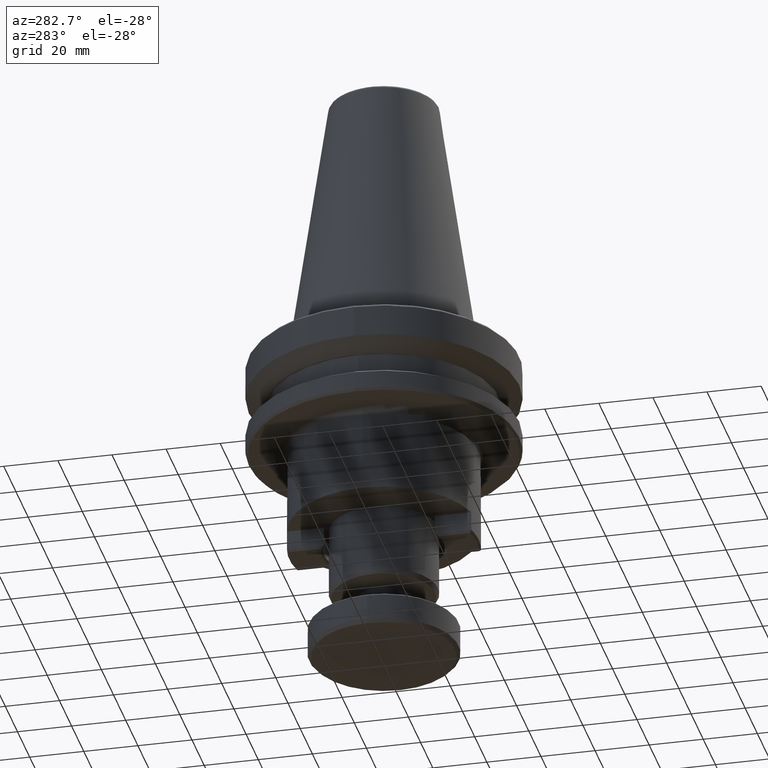
[diagram: clean part render]
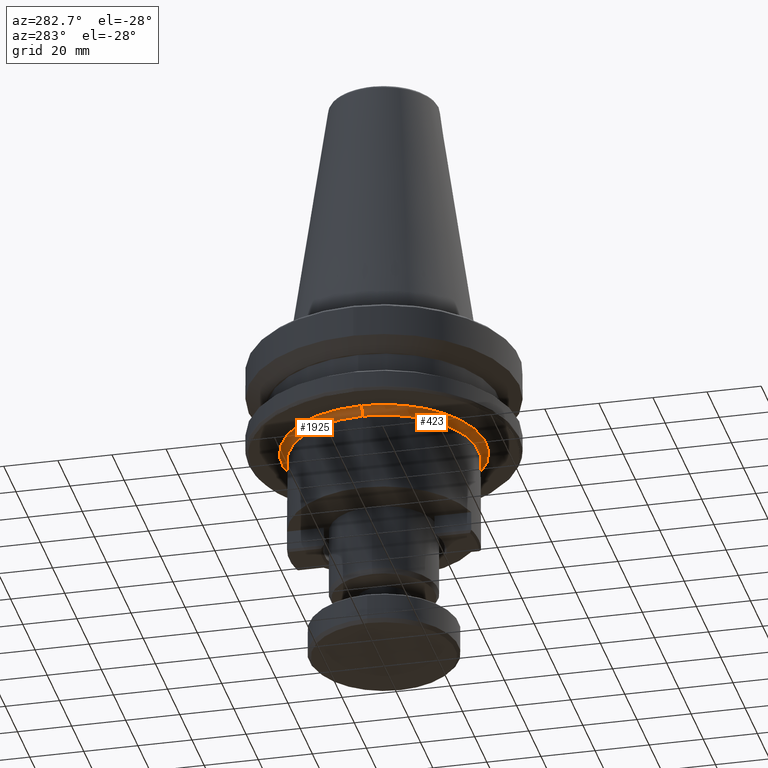
[diagram: same view with one multi-face feature highlighted, each face labeled with its STEP entity id]
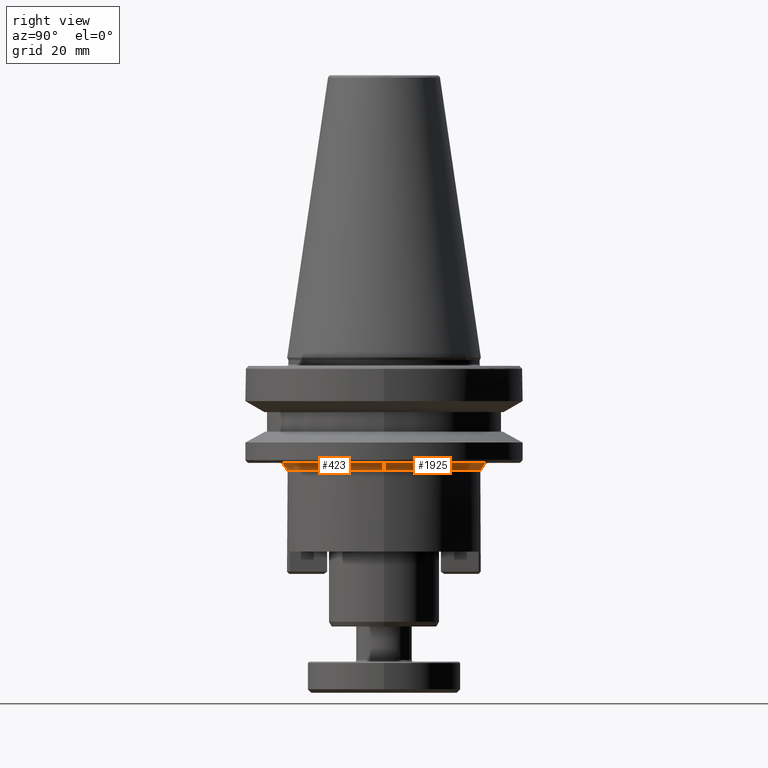
[diagram: same view with one multi-face feature highlighted, each face labeled with its STEP entity id]
A machine part, auxiliary view. The highlighted faces form ONE feature: a constant-radius fillet chain: 2 tangent blend faces with common blend radius 2.8 mm. The faces share edges in the B-rep.
A second angle (right view) of the same feature is appended — it is thin or edge-on in the first view.
Their STEP definitions:
[1] entity #423 (Torus):
#66 = VERTEX_POINT ( 'NONE', #588 ) ;
#208 = DIRECTION ( 'NONE',  ( -1.000000000000000000, -1.224646799147353900E-016, 0.0000000000000000000 ) ) ;
#210 = DIRECTION ( 'NONE',  ( -1.224646799147353200E-016, 1.000000000000000000, 0.0000000000000000000 ) ) ;
#213 = CARTESIAN_POINT ( 'NONE',  ( 37.79999999190400900, 4.629164899785522500E-015, -40.79999999183063200 ) ) ;
#243 = ORIENTED_EDGE ( 'NONE', *, *, #1105, .F. ) ;
#279 = ORIENTED_EDGE ( 'NONE', *, *, #789, .F. ) ;
#389 = EDGE_CURVE ( 'NONE', #1343, #66, #1089, .T. ) ;
#423 = ADVANCED_FACE ( 'NONE', ( #1962 ), #2146, .F. ) ;
#427 = AXIS2_PLACEMENT_3D ( 'NONE', #2846, #1915, #3002 ) ;
#571 = AXIS2_PLACEMENT_3D ( 'NONE', #213, #210, #208 ) ;
#588 = CARTESIAN_POINT ( 'NONE',  ( -37.79999999190400900, 0.0000000000000000000, -37.99999999992662200 ) ) ;
#706 = CARTESIAN_POINT ( 'NONE',  ( 37.79999999190400900, 0.0000000000000000000, -37.99999999992662200 ) ) ;
#734 = EDGE_CURVE ( 'NONE', #3249, #1343, #2515, .T. ) ;
#789 = EDGE_CURVE ( 'NONE', #2581, #66, #2501, .T. ) ;
#1002 = VERTEX_POINT ( 'NONE', #2387 ) ;
#1035 = ORIENTED_EDGE ( 'NONE', *, *, #389, .T. ) ;
#1089 = B_SPLINE_CURVE_WITH_KNOTS ( 'NONE', 3,
 ( #3314, #2165, #2634, #2556, #2997, #2715, #2795, #3185, #2390, #2974 ),
 .UNSPECIFIED., .F., .F.,
 ( 4, 2, 2, 2, 4 ),
 ( 0.0000000000000000000, 0.2500000000000000000, 0.5000000000000000000, 0.7500000000000000000, 1.000000000000000000 ),
 .UNSPECIFIED. ) ;
#1105 = EDGE_CURVE ( 'NONE', #1002, #2581, #2868, .T. ) ;
#1159 = CARTESIAN_POINT ( 'NONE',  ( -30.30357652988282500, -22.59498282551854600, -37.99999999992662200 ) ) ;
#1343 = VERTEX_POINT ( 'NONE', #1159 ) ;
#1413 = DIRECTION ( 'NONE',  ( -1.000000000000000000, 0.0000000000000000000, 0.0000000000000000000 ) ) ;
#1417 = DIRECTION ( 'NONE',  ( -0.0000000000000000000, -0.0000000000000000000, -1.000000000000000000 ) ) ;
#1419 = CARTESIAN_POINT ( 'NONE',  ( 0.0000000000000000000, 0.0000000000000000000, -40.79999999183063200 ) ) ;
#1464 = DIRECTION ( 'NONE',  ( 0.0000000000000000000, 0.0000000000000000000, -1.000000000000000000 ) ) ;
#1467 = DIRECTION ( 'NONE',  ( 0.0000000000000000000, -1.000000000000000000, 0.0000000000000000000 ) ) ;
#1472 = CARTESIAN_POINT ( 'NONE',  ( -37.79999999190400900, 0.0000000000000000000, -40.79999999183063200 ) ) ;
#1495 = CARTESIAN_POINT ( 'NONE',  ( 37.79999999190400900, 0.0000000000000000000, -37.99999999992662200 ) ) ;
#1530 = CARTESIAN_POINT ( 'NONE',  ( 37.79999999190401600, -3.938917507089715100, -37.99999999992662900 ) ) ;
#1542 = EDGE_CURVE ( 'NONE', #1002, #3249, #3229, .T. ) ;
#1573 = ORIENTED_EDGE ( 'NONE', *, *, #734, .T. ) ;
#1785 = CARTESIAN_POINT ( 'NONE',  ( -35.00000000000000000, 0.0000000000000000000, -40.79999999183063200 ) ) ;
#1915 = DIRECTION ( 'NONE',  ( -0.0000000000000000000, -0.0000000000000000000, -1.000000000000000000 ) ) ;
#1934 = ORIENTED_EDGE ( 'NONE', *, *, #1542, .T. ) ;
#1937 = CARTESIAN_POINT ( 'NONE',  ( -27.94908516895985800, -25.75274177119458200, -37.99999999992663600 ) ) ;
#1962 = FACE_OUTER_BOUND ( 'NONE', #2834, .T. ) ;
#1967 = CARTESIAN_POINT ( 'NONE',  ( -3.646464090788316300, -37.82933213989103600, -37.99999999992662900 ) ) ;
#2085 = CARTESIAN_POINT ( 'NONE',  ( 28.34406029596784600, -25.31737183149428500, -37.99999999992663600 ) ) ;
#2146 = TOROIDAL_SURFACE ( 'NONE', #427, 37.79999999190400900, 2.799999991904011100 ) ;
#2154 = CARTESIAN_POINT ( 'NONE',  ( 19.18407337293484400, -32.80741378617725000, -37.99999999992662200 ) ) ;
#2165 = CARTESIAN_POINT ( 'NONE',  ( -31.50994647908992600, -20.97704293322260900, -37.99999999992662200 ) ) ;
#2251 = CARTESIAN_POINT ( 'NONE',  ( -7.589439647831699000, -37.23916589220979700, -37.99999999992662200 ) ) ;
#2329 = CARTESIAN_POINT ( 'NONE',  ( 8.164511102264683000, -37.11732518617954200, -37.99999999992662900 ) ) ;
#2378 = CARTESIAN_POINT ( 'NONE',  ( -15.10397552265484200, -34.87441747078573000, -37.99999999992662900 ) ) ;
#2387 = CARTESIAN_POINT ( 'NONE',  ( 35.00000000000000000, 4.457714348400629900E-015, -40.79999999183063200 ) ) ;
#2390 = CARTESIAN_POINT ( 'NONE',  ( -37.79999999190401600, -2.018181842508889500, -37.99999999992662200 ) ) ;
#2501 = CIRCLE ( 'NONE', #2551, 2.799999991904014600 ) ;
#2515 = B_SPLINE_CURVE_WITH_KNOTS ( 'NONE', 3,
 ( #1495, #1530, #2995, #2720, #2697, #2085, #2987, #2154, #3292, #2329, #2535, #1967, #2251, #2378, #2970, #3169, #1937, #2518 ),
 .UNSPECIFIED., .F., .F.,
 ( 4, 2, 2, 2, 2, 2, 2, 2, 4 ),
 ( 0.0000000000000000000, 0.1249999999999999400, 0.2499999999999998900, 0.3749999999999998900, 0.4999999999999998900, 0.6249999999999998900, 0.7500000000000000000, 0.8750000000000000000, 1.000000000000000000 ),
 .UNSPECIFIED. ) ;
#2518 = CARTESIAN_POINT ( 'NONE',  ( -30.30357652988282500, -22.59498282551854600, -37.99999999992662200 ) ) ;
#2535 = CARTESIAN_POINT ( 'NONE',  ( 4.231135329920407500, -37.76840696052060100, -37.99999999992662900 ) ) ;
#2551 = AXIS2_PLACEMENT_3D ( 'NONE', #1472, #1467, #1464 ) ;
#2556 = CARTESIAN_POINT ( 'NONE',  ( -34.45221994650404400, -15.68303535974731300, -37.99999999992661500 ) ) ;
#2581 = VERTEX_POINT ( 'NONE', #1785 ) ;
#2634 = CARTESIAN_POINT ( 'NONE',  ( -32.58645162046419600, -19.26230069655549900, -37.99999999992662200 ) ) ;
#2697 = CARTESIAN_POINT ( 'NONE',  ( 32.95479741337081900, -18.92977543340884200, -37.99999999992662900 ) ) ;
#2715 = CARTESIAN_POINT ( 'NONE',  ( -36.51249458164444700, -9.987532065668707700, -37.99999999992662900 ) ) ;
#2720 = CARTESIAN_POINT ( 'NONE',  ( 34.75656420255846500, -15.37323373103496700, -37.99999999992662200 ) ) ;
#2795 = CARTESIAN_POINT ( 'NONE',  ( -36.99426980630255500, -8.021038513550893300, -37.99999999992662200 ) ) ;
#2834 = EDGE_LOOP ( 'NONE', ( #243, #1934, #1573, #1035, #279 ) ) ;
#2846 = CARTESIAN_POINT ( 'NONE',  ( 0.0000000000000000000, 0.0000000000000000000, -40.79999999183063200 ) ) ;
#2868 = CIRCLE ( 'NONE', #3071, 35.00000000000000000 ) ;
#2970 = CARTESIAN_POINT ( 'NONE',  ( -18.67434527126422600, -33.10020995711678900, -37.99999999992662900 ) ) ;
#2974 = CARTESIAN_POINT ( 'NONE',  ( -37.79999999190400900, 0.0000000000000000000, -37.99999999992662200 ) ) ;
#2987 = CARTESIAN_POINT ( 'NONE',  ( 25.53582047214509400, -28.14741450524323000, -37.99999999992662200 ) ) ;
#2995 = CARTESIAN_POINT ( 'NONE',  ( 37.17935742003987100, -7.877210949855753900, -37.99999999992662200 ) ) ;
#2997 = CARTESIAN_POINT ( 'NONE',  ( -35.24146268862988800, -13.81855147630473400, -37.99999999992662200 ) ) ;
#3002 = DIRECTION ( 'NONE',  ( -1.000000000000000000, 0.0000000000000000000, 0.0000000000000000000 ) ) ;
#3071 = AXIS2_PLACEMENT_3D ( 'NONE', #1419, #1417, #1413 ) ;
#3169 = CARTESIAN_POINT ( 'NONE',  ( -25.09740891503325600, -28.53901077940877700, -37.99999999992662900 ) ) ;
#3185 = CARTESIAN_POINT ( 'NONE',  ( -37.63802603813289900, -4.036341572538969300, -37.99999999992662900 ) ) ;
#3229 = CIRCLE ( 'NONE', #571, 2.799999991904007900 ) ;
#3249 = VERTEX_POINT ( 'NONE', #706 ) ;
#3292 = CARTESIAN_POINT ( 'NONE',  ( 15.64157243970875500, -34.63663208409479900, -37.99999999992662200 ) ) ;
#3314 = CARTESIAN_POINT ( 'NONE',  ( -30.30357652988282500, -22.59498282551854600, -37.99999999992662200 ) ) ;
[2] entity #1925 (Torus):
#66 = VERTEX_POINT ( 'NONE', #588 ) ;
#199 = ORIENTED_EDGE ( 'NONE', *, *, #1529, .T. ) ;
#208 = DIRECTION ( 'NONE',  ( -1.000000000000000000, -1.224646799147353900E-016, 0.0000000000000000000 ) ) ;
#210 = DIRECTION ( 'NONE',  ( -1.224646799147353200E-016, 1.000000000000000000, 0.0000000000000000000 ) ) ;
#213 = CARTESIAN_POINT ( 'NONE',  ( 37.79999999190400900, 4.629164899785522500E-015, -40.79999999183063200 ) ) ;
#250 = CARTESIAN_POINT ( 'NONE',  ( 30.30357602049704700, 22.59498235865908100, -37.99999999993885100 ) ) ;
#251 = CARTESIAN_POINT ( 'NONE',  ( 27.94908521476687500, 25.75274172192559900, -37.99999999992662900 ) ) ;
#256 = CARTESIAN_POINT ( 'NONE',  ( 25.09740896350712400, 28.53901073718184700, -37.99999999992662900 ) ) ;
#257 = CARTESIAN_POINT ( 'NONE',  ( 18.67434532236479300, 33.10020992863309900, -37.99999999992662200 ) ) ;
#258 = CARTESIAN_POINT ( 'NONE',  ( 15.10397557371786800, 34.87441744899894800, -37.99999999992662900 ) ) ;
#261 = CARTESIAN_POINT ( 'NONE',  ( 7.589439696621719000, 37.23916588257383600, -37.99999999992662200 ) ) ;
#262 = CARTESIAN_POINT ( 'NONE',  ( 3.646464137346735200, 37.82933213570591800, -37.99999999992662900 ) ) ;
#266 = CARTESIAN_POINT ( 'NONE',  ( -4.231135289247693400, 37.76840696538035000, -37.99999999992662200 ) ) ;
#267 = CARTESIAN_POINT ( 'NONE',  ( -8.164511065241510900, 37.11732519463191700, -37.99999999992662900 ) ) ;
#268 = CARTESIAN_POINT ( 'NONE',  ( -15.64157241049525200, 34.63663209761801900, -37.99999999992662200 ) ) ;
#270 = CARTESIAN_POINT ( 'NONE',  ( -19.18407334787674000, 32.80741380117905200, -37.99999999992662900 ) ) ;
#272 = CARTESIAN_POINT ( 'NONE',  ( -25.53582045500226300, 28.14741452120241400, -37.99999999992662200 ) ) ;
#282 = CARTESIAN_POINT ( 'NONE',  ( -28.34406028258063900, 25.31737184693433200, -37.99999999992662900 ) ) ;
#283 = CARTESIAN_POINT ( 'NONE',  ( -32.95479740633558700, 18.92977544626154100, -37.99999999992662200 ) ) ;
#286 = CARTESIAN_POINT ( 'NONE',  ( -34.75656419811640800, 15.37323374182284800, -37.99999999992661500 ) ) ;
#287 = CARTESIAN_POINT ( 'NONE',  ( -37.17935741911626500, 7.877210955669038000, -37.99999999992662200 ) ) ;
#293 = CARTESIAN_POINT ( 'NONE',  ( -37.79999999190400900, 3.938917509997514000, -37.99999999992662200 ) ) ;
#316 = CARTESIAN_POINT ( 'NONE',  ( -37.79999999190400900, 0.0000000000000000000, -37.99999999992662200 ) ) ;
#435 = ORIENTED_EDGE ( 'NONE', *, *, #1225, .T. ) ;
#571 = AXIS2_PLACEMENT_3D ( 'NONE', #213, #210, #208 ) ;
#588 = CARTESIAN_POINT ( 'NONE',  ( -37.79999999190400900, 0.0000000000000000000, -37.99999999992662200 ) ) ;
#706 = CARTESIAN_POINT ( 'NONE',  ( 37.79999999190400900, 0.0000000000000000000, -37.99999999992662200 ) ) ;
#789 = EDGE_CURVE ( 'NONE', #2581, #66, #2501, .T. ) ;
#861 = ORIENTED_EDGE ( 'NONE', *, *, #3060, .F. ) ;
#905 = VERTEX_POINT ( 'NONE', #1762 ) ;
#1002 = VERTEX_POINT ( 'NONE', #2387 ) ;
#1090 = CIRCLE ( 'NONE', #3000, 35.00000000000000000 ) ;
#1117 = AXIS2_PLACEMENT_3D ( 'NONE', #1846, #2923, #2961 ) ;
#1225 = EDGE_CURVE ( 'NONE', #905, #3249, #3374, .T. ) ;
#1327 = CARTESIAN_POINT ( 'NONE',  ( 37.79999999190400900, 0.0000000000000000000, -37.99999999992662200 ) ) ;
#1329 = CARTESIAN_POINT ( 'NONE',  ( 37.79999999190400200, 2.018181836693300200, -37.99999999992662200 ) ) ;
#1330 = CARTESIAN_POINT ( 'NONE',  ( 37.63802603906835700, 4.036341560908112100, -37.99999999992662900 ) ) ;
#1332 = CARTESIAN_POINT ( 'NONE',  ( 36.99426981093223100, 8.021038490734879300, -37.99999999992662200 ) ) ;
#1335 = CARTESIAN_POINT ( 'NONE',  ( 36.51249458903271300, 9.987532037483445500, -37.99999999992662900 ) ) ;
#1338 = CARTESIAN_POINT ( 'NONE',  ( 35.24146270321721600, 13.81855143825331600, -37.99999999992662200 ) ) ;
#1339 = CARTESIAN_POINT ( 'NONE',  ( 34.45221996553155500, 15.68303531719959500, -37.99999999992661500 ) ) ;
#1341 = CARTESIAN_POINT ( 'NONE',  ( 32.58645164982419800, 19.26230064627724700, -37.99999999992662200 ) ) ;
#1355 = CARTESIAN_POINT ( 'NONE',  ( 30.30357602049704700, 22.59498235865908100, -37.99999999993885100 ) ) ;
#1379 = CARTESIAN_POINT ( 'NONE',  ( 31.50994651434183800, 20.97704287971063800, -37.99999999992662200 ) ) ;
#1436 = DIRECTION ( 'NONE',  ( -0.0000000000000000000, -0.0000000000000000000, -1.000000000000000000 ) ) ;
#1464 = DIRECTION ( 'NONE',  ( 0.0000000000000000000, 0.0000000000000000000, -1.000000000000000000 ) ) ;
#1467 = DIRECTION ( 'NONE',  ( 0.0000000000000000000, -1.000000000000000000, 0.0000000000000000000 ) ) ;
#1472 = CARTESIAN_POINT ( 'NONE',  ( -37.79999999190400900, 0.0000000000000000000, -40.79999999183063200 ) ) ;
#1529 = EDGE_CURVE ( 'NONE', #66, #905, #2638, .T. ) ;
#1542 = EDGE_CURVE ( 'NONE', #1002, #3249, #3229, .T. ) ;
#1762 = CARTESIAN_POINT ( 'NONE',  ( 30.30357602049704700, 22.59498235865908100, -37.99999999993885100 ) ) ;
#1785 = CARTESIAN_POINT ( 'NONE',  ( -35.00000000000000000, 0.0000000000000000000, -40.79999999183063200 ) ) ;
#1846 = CARTESIAN_POINT ( 'NONE',  ( 0.0000000000000000000, 0.0000000000000000000, -40.79999999183063200 ) ) ;
#1925 = ADVANCED_FACE ( 'NONE', ( #2630 ), #2601, .F. ) ;
#2387 = CARTESIAN_POINT ( 'NONE',  ( 35.00000000000000000, 4.457714348400629900E-015, -40.79999999183063200 ) ) ;
#2501 = CIRCLE ( 'NONE', #2551, 2.799999991904014600 ) ;
#2551 = AXIS2_PLACEMENT_3D ( 'NONE', #1472, #1467, #1464 ) ;
#2581 = VERTEX_POINT ( 'NONE', #1785 ) ;
#2601 = TOROIDAL_SURFACE ( 'NONE', #1117, 37.79999999190400900, 2.799999991904011100 ) ;
#2630 = FACE_OUTER_BOUND ( 'NONE', #2940, .T. ) ;
#2638 = B_SPLINE_CURVE_WITH_KNOTS ( 'NONE', 3,
 ( #316, #293, #287, #286, #283, #282, #272, #270, #268, #267, #266, #262, #261, #258, #257, #256, #251, #250 ),
 .UNSPECIFIED., .F., .F.,
 ( 4, 2, 2, 2, 2, 2, 2, 2, 4 ),
 ( 0.0000000000000000000, 0.1250000000000000000, 0.2500000000000000000, 0.3750000000000000000, 0.5000000000000000000, 0.6250000000000000000, 0.7500000000000000000, 0.8750000000000000000, 1.000000000000000000 ),
 .UNSPECIFIED. ) ;
#2923 = DIRECTION ( 'NONE',  ( -0.0000000000000000000, -0.0000000000000000000, -1.000000000000000000 ) ) ;
#2940 = EDGE_LOOP ( 'NONE', ( #3258, #861, #3043, #199, #435 ) ) ;
#2961 = DIRECTION ( 'NONE',  ( -1.000000000000000000, 0.0000000000000000000, 0.0000000000000000000 ) ) ;
#2962 = CARTESIAN_POINT ( 'NONE',  ( 0.0000000000000000000, 0.0000000000000000000, -40.79999999183063200 ) ) ;
#3000 = AXIS2_PLACEMENT_3D ( 'NONE', #2962, #1436, #3208 ) ;
#3043 = ORIENTED_EDGE ( 'NONE', *, *, #789, .T. ) ;
#3060 = EDGE_CURVE ( 'NONE', #2581, #1002, #1090, .T. ) ;
#3208 = DIRECTION ( 'NONE',  ( -1.000000000000000000, 0.0000000000000000000, 0.0000000000000000000 ) ) ;
#3229 = CIRCLE ( 'NONE', #571, 2.799999991904007900 ) ;
#3249 = VERTEX_POINT ( 'NONE', #706 ) ;
#3258 = ORIENTED_EDGE ( 'NONE', *, *, #1542, .F. ) ;
#3374 = B_SPLINE_CURVE_WITH_KNOTS ( 'NONE', 3,
 ( #1355, #1379, #1341, #1339, #1338, #1335, #1332, #1330, #1329, #1327 ),
 .UNSPECIFIED., .F., .F.,
 ( 4, 2, 2, 2, 4 ),
 ( 0.0000000000000000000, 0.2500000000000000000, 0.5000000000000000000, 0.7500000000000000000, 1.000000000000000000 ),
 .UNSPECIFIED. ) ;